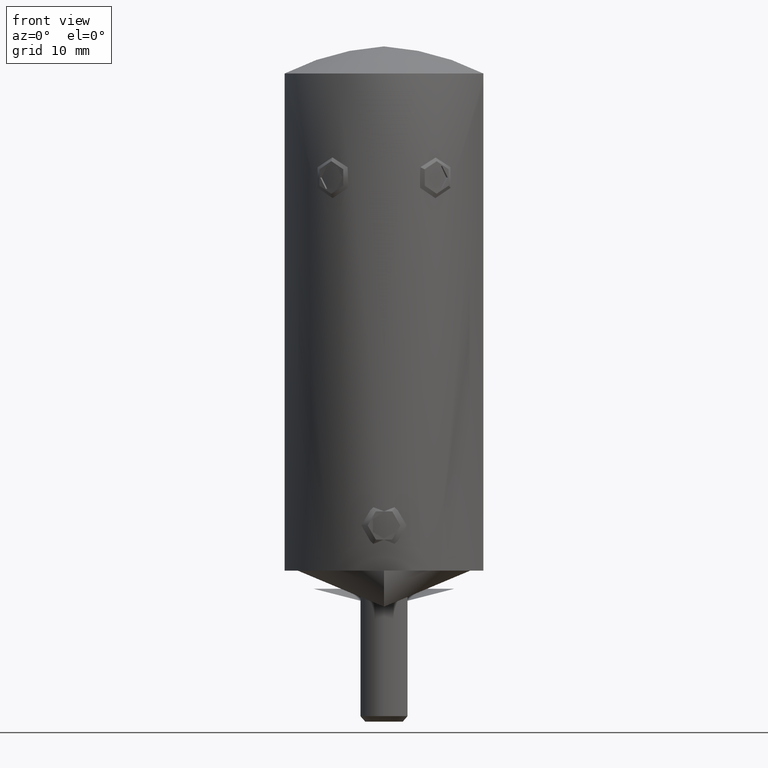
[diagram: clean part render]
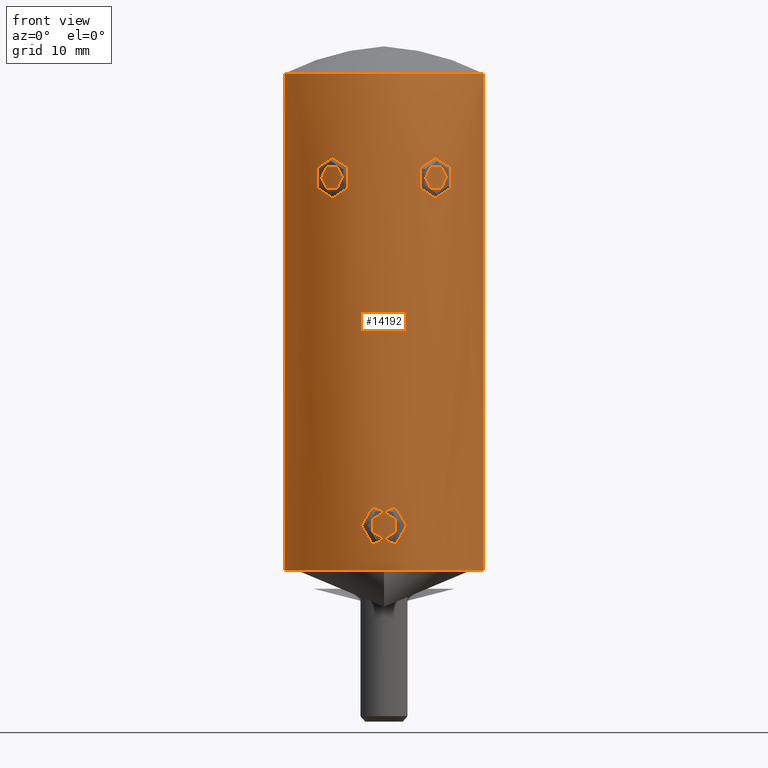
[diagram: same view with one face highlighted and labeled with its STEP entity id]
A machine part, front view. The second image highlights one B-rep face of the part: STEP entity #14192.
In plain terms, the highlighted cylindrical surface (partial cylindrical patch) has radius 11 mm, axis along (0, 0, 1).
Its self-contained STEP definition (entity closure, byte-faithful):
#43 = CARTESIAN_POINT ( 'NONE',  ( -10.99999999999999645, 3.179853121175712002E-15, 53.39940828047591737 ) ) ;
#69 = CIRCLE ( 'NONE', #14292, 10.99999999999999289 ) ;
#240 = CARTESIAN_POINT ( 'NONE',  ( 1.263044276301096058, -10.92810671216107643, 7.093506342109609619 ) ) ;
#248 = CARTESIAN_POINT ( 'NONE',  ( -1.533328306870322955, -10.89347143110831162, 3.080631270009503542 ) ) ;
#324 = VERTEX_POINT ( 'NONE', #18736 ) ;
#404 = EDGE_CURVE ( 'NONE', #7524, #13003, #69, .T. ) ;
#454 = CARTESIAN_POINT ( 'NONE',  ( -7.805173626811875209, -7.751081515202912442, 43.50247619131340571 ) ) ;
#503 = CARTESIAN_POINT ( 'NONE',  ( 7.346014400757161056, -8.188394633988851368, 41.90222231646865225 ) ) ;
#515 = CARTESIAN_POINT ( 'NONE',  ( 10.19334211656566147, -4.142174966946753578, 50.31575412906218503 ) ) ;
#579 = CARTESIAN_POINT ( 'NONE',  ( 10.29346247027996775, -3.890323998195838406, 50.72933105976477464 ) ) ;
#648 = CARTESIAN_POINT ( 'NONE',  ( 4.723918369379720872, -9.934956473713363323, 45.59595233822933835 ) ) ;
#718 = CARTESIAN_POINT ( 'NONE',  ( 4.475048106235433032, -10.04951289078336174, 45.42151148479056388 ) ) ;
#727 = CARTESIAN_POINT ( 'NONE',  ( 9.204154736256590752, -6.023743178888253169, 41.58995823227913746 ) ) ;
#797 = CARTESIAN_POINT ( 'NONE',  ( 10.44101067740119859, -3.465226348147305568, 51.31766995334638182 ) ) ;
#808 = CARTESIAN_POINT ( 'NONE',  ( -7.169343856100153012, -8.343527073195010857, 45.32063242537911663 ) ) ;
#813 = ORIENTED_EDGE ( 'NONE', *, *, #16245, .T. ) ;
#916 = CARTESIAN_POINT ( 'NONE',  ( -3.609331322568744227, -10.39179767781439701, 42.86600142999875374 ) ) ;
#936 = FACE_OUTER_BOUND ( 'NONE', #13303, .T. ) ;
#945 = CARTESIAN_POINT ( 'NONE',  ( 4.138493009041316562, -10.19248796723455541, 45.09683115607418102 ) ) ;
#966 = CARTESIAN_POINT ( 'NONE',  ( -5.123455516578107272, -9.735154540822911429, 45.79025270536583747 ) ) ;
#996 = CARTESIAN_POINT ( 'NONE',  ( -9.865857427622449549, -4.866926039614830835, 38.42771457943570113 ) ) ;
#1065 = CARTESIAN_POINT ( 'NONE',  ( -9.276586281824346969, -5.912086988701063639, 40.85549550818720377 ) ) ;
#1078 = CARTESIAN_POINT ( 'NONE',  ( -10.99999999999999645, 1.347111479062088010E-15, 57.99999999999999289 ) ) ;
#1518 = ORIENTED_EDGE ( 'NONE', *, *, #17278, .F. ) ;
#1526 = CARTESIAN_POINT ( 'NONE',  ( -7.572403671502472733, -7.979692977154612343, 42.28070653199636553 ) ) ;
#1602 = CARTESIAN_POINT ( 'NONE',  ( -4.722979850324800388, -9.935418067239124795, 41.40451927373677421 ) ) ;
#1674 = CARTESIAN_POINT ( 'NONE',  ( 2.256039582267046484, -10.76635616934929729, 3.926755654190314360 ) ) ;
#1687 = CARTESIAN_POINT ( 'NONE',  ( -1.543197030307326356, -10.89377639713939772, 6.931762059575682144 ) ) ;
#1764 = CARTESIAN_POINT ( 'NONE',  ( -2.382999229834681820, -10.73896813810978657, 4.220662270624457868 ) ) ;
#1825 = CARTESIAN_POINT ( 'NONE',  ( 0.002621827913309107781, -10.99999968754628021, 7.415153783528226406 ) ) ;
#1966 = CARTESIAN_POINT ( 'NONE',  ( 1.998357958352909636, -10.81735236367631892, 6.471525135745430646 ) ) ;
#1980 = CARTESIAN_POINT ( 'NONE',  ( -1.996072047007856565, -10.81778173646561036, 3.525478995045348451 ) ) ;
#2081 = DIRECTION ( 'NONE',  ( -0.000000000000000000, -0.000000000000000000, 1.000000000000000000 ) ) ;
#2226 = CARTESIAN_POINT ( 'NONE',  ( 6.859476513099561856, -8.600386782210662773, 41.40451927374201802 ) ) ;
#2240 = CARTESIAN_POINT ( 'NONE',  ( 9.151289692457538649, -6.103598936795919805, 43.32308385316923705 ) ) ;
#2289 = CARTESIAN_POINT ( 'NONE',  ( -10.93454373632697596, -1.219124606259238464, 53.16612827335458036 ) ) ;
#2308 = CARTESIAN_POINT ( 'NONE',  ( 3.623387571015019404, -10.38615267738855685, 42.87210132435333776 ) ) ;
#2345 = CARTESIAN_POINT ( 'NONE',  ( 1.995493121734534858, -10.81788920119726960, 3.524738894744719797 ) ) ;
#2361 = CARTESIAN_POINT ( 'NONE',  ( -10.99999999999999822, 1.347111479062088405E-15, 0.000000000000000000 ) ) ;
#2379 = CARTESIAN_POINT ( 'NONE',  ( 4.854168774372745965, -9.872201088604477093, 41.33002558955958250 ) ) ;
#2401 = ORIENTED_EDGE ( 'NONE', *, *, #6658, .T. ) ;
#2426 = CARTESIAN_POINT ( 'NONE',  ( -10.84083531602275663, -1.875746620144945975, 52.82786226949431097 ) ) ;
#2445 = CARTESIAN_POINT ( 'NONE',  ( 7.805174582279891027, -7.751080553066898027, 43.49999999999998579 ) ) ;
#2453 = CARTESIAN_POINT ( 'NONE',  ( 10.73887330626719283, -2.424918566267703302, 36.56511376614759712 ) ) ;
#2467 = CARTESIAN_POINT ( 'NONE',  ( -4.717684471826847137, -9.941608254227402242, 45.60877343995289124 ) ) ;
#2532 = CARTESIAN_POINT ( 'NONE',  ( 9.403972630176102854, -5.707726091161575255, 46.25228794264832999 ) ) ;
#2534 = ORIENTED_EDGE ( 'NONE', *, *, #11725, .T. ) ;
#2549 = CARTESIAN_POINT ( 'NONE',  ( -7.346751575683108548, -8.187745515911998950, 45.09683115594850022 ) ) ;
#2712 = CARTESIAN_POINT ( 'NONE',  ( -9.180302095915836347, -6.060518049954422892, 41.83116569363649262 ) ) ;
#2805 = DIRECTION ( 'NONE',  ( -0.000000000000000000, -0.000000000000000000, 1.000000000000000000 ) ) ;
#2822 = EDGE_LOOP ( 'NONE', ( #2401, #8426 ) ) ;
#3242 = EDGE_CURVE ( 'NONE', #11207, #13003, #3795, .T. ) ;
#3330 = CARTESIAN_POINT ( 'NONE',  ( -6.861096738142906659, -8.599075392163483045, 41.40577892343836197 ) ) ;
#3494 = CARTESIAN_POINT ( 'NONE',  ( -1.661524859630388873, -10.87442308525896451, 3.181962713572197732 ) ) ;
#3565 = CARTESIAN_POINT ( 'NONE',  ( -2.511729057886775696, -10.70939854239877853, 5.157936335757336010 ) ) ;
#3709 = CARTESIAN_POINT ( 'NONE',  ( 2.383584876163842292, -10.73884196754025488, 5.778017131772690718 ) ) ;
#3720 = CARTESIAN_POINT ( 'NONE',  ( -0.1616220108472307682, -11.00003883473657673, 7.415315291338782089 ) ) ;
#3795 = LINE ( 'NONE', #18200, #14477 ) ;
#3902 = VERTEX_POINT ( 'NONE', #9607 ) ;
#3936 = CARTESIAN_POINT ( 'NONE',  ( -10.99999999999999645, 1.353269175272069596E-15, 36.14600281952412786 ) ) ;
#3976 = CARTESIAN_POINT ( 'NONE',  ( 7.805122478971231459, -7.751133019999428164, 43.18034840470479452 ) ) ;
#3987 = CARTESIAN_POINT ( 'NONE',  ( 10.76329257720631816, -2.278833159707700506, 52.54377521516335037 ) ) ;
#4052 = CARTESIAN_POINT ( 'NONE',  ( 9.474578436458171993, -5.590818455961033884, 46.72472478465109447 ) ) ;
#4110 = CARTESIAN_POINT ( 'NONE',  ( 6.501307959275925974, -8.874460939697680573, 41.20867836921561889 ) ) ;
#4118 = CARTESIAN_POINT ( 'NONE',  ( 5.127724821338821570, -9.732930862167018304, 45.79194129289089688 ) ) ;
#4204 = CARTESIAN_POINT ( 'NONE',  ( 9.995745178423522503, -4.598577528994654884, 49.45529242598477992 ) ) ;
#4209 = VERTEX_POINT ( 'NONE', #20497 ) ;
#4246 = CARTESIAN_POINT ( 'NONE',  ( -10.49113112059435160, -3.320822038456118452, 51.51752061989330400 ) ) ;
#4335 = CARTESIAN_POINT ( 'NONE',  ( 10.99999999999999645, -2.446736237841549440E-16, 36.14600281952412786 ) ) ;
#4378 = B_SPLINE_CURVE_WITH_KNOTS ( 'NONE', 3,
 ( #454, #9077, #12800, #11223, #21390, #14714, #2549, #808, #14573, #4508, #19714, #9436, #17960, #11157, #12931, #14442, #9363, #19633, #966, #2467, #6083, #14500, #18115, #7853, #4434, #16428, #7929, #21461 ),
 .UNSPECIFIED., .F., .F.,
 ( 4, 2, 2, 2, 2, 2, 2, 2, 2, 2, 2, 2, 2, 4 ),
 ( 0.5000000000000000000, 0.5624999999999992228, 0.5937499999999994449, 0.6249999999999996669, 0.6562499999999998890, 0.6875000000000001110, 0.7187500000000003331, 0.7500000000000005551, 0.7812500000000007772, 0.8125000000000009992, 0.8750000000000008882, 0.9062500000000004441, 0.9375000000000000000, 1.000000000000000000 ),
 .UNSPECIFIED. ) ;
#4385 = CARTESIAN_POINT ( 'NONE',  ( -9.663109020658438908, -5.264292116124043019, 39.02877772619952879 ) ) ;
#4407 = ORIENTED_EDGE ( 'NONE', *, *, #15557, .T. ) ;
#4434 = CARTESIAN_POINT ( 'NONE',  ( -3.791161425048452216, -10.32624101775442149, 44.57151056501534470 ) ) ;
#4446 = LINE ( 'NONE', #1078, #22174 ) ;
#4470 = CARTESIAN_POINT ( 'NONE',  ( -10.50514627013607516, -3.293040702412894927, 36.98298912679695150 ) ) ;
#4508 = CARTESIAN_POINT ( 'NONE',  ( -6.858650215820417451, -8.601027968341584895, 45.59595233828814997 ) ) ;
#4731 = B_SPLINE_CURVE_WITH_KNOTS ( 'NONE', 3,
 ( #5959, #16378, #916, #17924, #21941, #19661, #6110, #18065, #18674, #1602, #18509, #22180, #8422, #11858, #10137, #15343, #15130, #13575, #9982, #8265, #3330, #20282, #20588, #8505, #1526, #8342, #11711, #20509, #22018, #4919 ),
 .UNSPECIFIED., .F., .F.,
 ( 4, 2, 2, 2, 2, 2, 2, 2, 2, 2, 2, 2, 2, 2, 4 ),
 ( 0.000000000000000000, 0.06250000000000113798, 0.09375000000000109635, 0.1250000000000010547, 0.1562500000000009992, 0.1875000000000009714, 0.2187500000000009159, 0.2500000000000008882, 0.2812500000000008327, 0.3125000000000007772, 0.3437500000000007772, 0.3750000000000007216, 0.4374999999999996669, 0.4687499999999998890, 0.5000000000000000000 ),
 .UNSPECIFIED. ) ;
#4785 = AXIS2_PLACEMENT_3D ( 'NONE', #10193, #17074, #6762 ) ;
#4919 = CARTESIAN_POINT ( 'NONE',  ( -7.805173626811875209, -7.751081515202912442, 43.50247619131340571 ) ) ;
#4953 = EDGE_CURVE ( 'NONE', #11202, #10979, #5534, .T. ) ;
#5161 = CARTESIAN_POINT ( 'NONE',  ( -1.892943344138689588, -10.83654561251814030, 6.595331397874517165 ) ) ;
#5220 = CARTESIAN_POINT ( 'NONE',  ( 1.116343252719524504, -10.94426300031696009, 7.169244775428256666 ) ) ;
#5233 = CARTESIAN_POINT ( 'NONE',  ( -2.256864148904698109, -10.76618397735614430, 6.071739856479837272 ) ) ;
#5385 = CARTESIAN_POINT ( 'NONE',  ( -0.3276201267070146250, -10.99632626431258409, 7.399832416807036850 ) ) ;
#5440 = CARTESIAN_POINT ( 'NONE',  ( 2.495297978064225930, -10.71329013739204861, 4.682043413946999522 ) ) ;
#5451 = CARTESIAN_POINT ( 'NONE',  ( -0.3315329495192520515, -10.99999999999999822, 2.584844930053900480 ) ) ;
#5534 = B_SPLINE_CURVE_WITH_KNOTS ( 'NONE', 3,
 ( #12685, #16247, #11028, #12543, #2289, #14241, #2426, #19663, #15962, #5752, #4246, #7456, #5960, #21194, #16097, #12965, #11398, #21553, #11315, #16465, #7885, #6239, #2712, #1065, #18143, #14741, #4385, #996, #19884, #14674, #7812, #7959, #4470, #18213, #19963, #16312, #11183, #6111, #19819, #21487 ),
 .UNSPECIFIED., .F., .F.,
 ( 4, 2, 2, 2, 2, 2, 2, 2, 2, 2, 2, 2, 2, 2, 2, 2, 2, 2, 2, 4 ),
 ( 5.732706551633638924E-18, 0.0007447471617333642534, 0.001489494323466722218, 0.002234241485200080292, 0.002978988646933438799, 0.004468482970400154512, 0.005957977293866868924, 0.007447471617333584204, 0.008936965940800298616, 0.01191595458773374826, 0.01340544891120047308, 0.01489494323466719790, 0.01638443755813392619, 0.01787393188160064927, 0.01861867904333400908, 0.01936342620506737236, 0.02085292052853408504, 0.02159766769026744138, 0.02234241485200080118, 0.02383190917546752080 ),
 .UNSPECIFIED. ) ;
#5597 = CARTESIAN_POINT ( 'NONE',  ( -1.813320843293642483E-15, -10.99999999999999645, 2.584844900694855063 ) ) ;
#5695 = CARTESIAN_POINT ( 'NONE',  ( 5.689463253177241775, -9.415786239710421057, 41.08485959924114894 ) ) ;
#5707 = CARTESIAN_POINT ( 'NONE',  ( 9.276186270179691107, -5.912711176572025273, 40.85856367220498697 ) ) ;
#5752 = CARTESIAN_POINT ( 'NONE',  ( -10.58764482631107562, -3.006227149099431895, 51.88764023705202533 ) ) ;
#5758 = EDGE_LOOP ( 'NONE', ( #14025, #4407 ) ) ;
#5768 = CARTESIAN_POINT ( 'NONE',  ( 7.169889557034017535, -8.343046086292673635, 41.68007258356631439 ) ) ;
#5818 = VERTEX_POINT ( 'NONE', #11908 ) ;
#5845 = CARTESIAN_POINT ( 'NONE',  ( 6.743819097475735269, -8.691603196884100768, 41.32930433182398389 ) ) ;
#5920 = CARTESIAN_POINT ( 'NONE',  ( 4.356278970466076927, -10.10132510513249393, 45.32063242525347135 ) ) ;
#5924 = CARTESIAN_POINT ( 'NONE',  ( 10.99144955070029539, -0.4993093784154237769, 36.15920211634576731 ) ) ;
#5959 = CARTESIAN_POINT ( 'NONE',  ( -3.545061720958730955, -10.41309451578122669, 43.49999999999998579 ) ) ;
#5960 = CARTESIAN_POINT ( 'NONE',  ( -10.19190643202290580, -4.145583814347573615, 50.30960074465254905 ) ) ;
#5979 = CARTESIAN_POINT ( 'NONE',  ( 7.618695975550133781, -7.934712000149041877, 42.42702881918063440 ) ) ;
#5985 = CARTESIAN_POINT ( 'NONE',  ( 5.970656882540883004, -9.240046677388185969, 45.91502748698400893 ) ) ;
#5992 = CARTESIAN_POINT ( 'NONE',  ( 10.36446980822711517, -3.690835795071915282, 37.26007699895404102 ) ) ;
#6062 = CARTESIAN_POINT ( 'NONE',  ( 3.792050123238138060, -10.32591424576499151, 44.57324526192557101 ) ) ;
#6083 = CARTESIAN_POINT ( 'NONE',  ( -4.461155432050977865, -10.05747660313178216, 45.42891471473495812 ) ) ;
#6110 = CARTESIAN_POINT ( 'NONE',  ( -4.139399588588111634, -10.19210995349174631, 41.90222231646870199 ) ) ;
#6111 = CARTESIAN_POINT ( 'NONE',  ( -10.96611358357113097, -0.9909392377880378300, 36.19764238659529099 ) ) ;
#6222 = EDGE_CURVE ( 'NONE', #16220, #6376, #15059, .T. ) ;
#6239 = CARTESIAN_POINT ( 'NONE',  ( -9.156828884951634606, -6.095285974169081022, 42.32467338520976341 ) ) ;
#6264 = CARTESIAN_POINT ( 'NONE',  ( 6.867361557435126329, -8.598340926928942807, 45.60877343997567834 ) ) ;
#6376 = VERTEX_POINT ( 'NONE', #4335 ) ;
#6658 = EDGE_CURVE ( 'NONE', #22033, #324, #19297, .T. ) ;
#6762 = DIRECTION ( 'NONE',  ( 1.000000000000000000, 0.000000000000000000, 0.000000000000000000 ) ) ;
#6787 = CARTESIAN_POINT ( 'NONE',  ( -1.261211241403978667, -10.92831925419362626, 2.905472548706903524 ) ) ;
#6890 = ORIENTED_EDGE ( 'NONE', *, *, #6222, .T. ) ;
#7004 = CARTESIAN_POINT ( 'NONE',  ( -2.177980241880006496, -10.78262365602483186, 6.213167996627049661 ) ) ;
#7113 = CARTESIAN_POINT ( 'NONE',  ( 10.93489635769101120, -1.216236221673742568, 53.16739528019291328 ) ) ;
#7149 = ORIENTED_EDGE ( 'NONE', *, *, #404, .F. ) ;
#7287 = CARTESIAN_POINT ( 'NONE',  ( 1.543890676010165386, -10.89363039259129273, 3.069276441871676475 ) ) ;
#7403 = CARTESIAN_POINT ( 'NONE',  ( 5.126284629172894292, -9.733679403218731707, 41.20864326721933679 ) ) ;
#7456 = CARTESIAN_POINT ( 'NONE',  ( -10.29255199365515239, -3.892950636535786213, 50.72570193885133705 ) ) ;
#7524 = VERTEX_POINT ( 'NONE', #19038 ) ;
#7540 = CARTESIAN_POINT ( 'NONE',  ( 4.721090920897334620, -9.936299440280057738, 41.40577892337500998 ) ) ;
#7548 = CARTESIAN_POINT ( 'NONE',  ( 10.72128936084499706, -2.467408373022287105, 52.38849049659415869 ) ) ;
#7632 = CARTESIAN_POINT ( 'NONE',  ( 9.631011627530940089, -5.316813198380814676, 47.65461018336073806 ) ) ;
#7701 = CARTESIAN_POINT ( 'NONE',  ( 6.374115018154714818, -8.966432038738386012, 45.83722599151861488 ) ) ;
#7708 = CARTESIAN_POINT ( 'NONE',  ( 9.731269890558168711, -5.130702321242053721, 38.82671386850730499 ) ) ;
#7812 = CARTESIAN_POINT ( 'NONE',  ( -10.15198952329512316, -4.239602061929548249, 37.71287690491390521 ) ) ;
#7853 = CARTESIAN_POINT ( 'NONE',  ( -3.865003218479962754, -10.29904843934486713, 44.71000965139072747 ) ) ;
#7885 = CARTESIAN_POINT ( 'NONE',  ( -9.151137685892106077, -6.103827110021398106, 43.32066602409263112 ) ) ;
#7929 = CARTESIAN_POINT ( 'NONE',  ( -3.544992605608411118, -10.41311804559576260, 43.81562291544153709 ) ) ;
#7959 = CARTESIAN_POINT ( 'NONE',  ( -10.36534291987990741, -3.702449709549165746, 37.24861618029456878 ) ) ;
#7982 = CARTESIAN_POINT ( 'NONE',  ( 7.426268274342175069, -8.115367407106795383, 44.97289511913714222 ) ) ;
#8201 = CARTESIAN_POINT ( 'NONE',  ( 0.000000000000000000, 0.000000000000000000, 54.99999999999999289 ) ) ;
#8265 = CARTESIAN_POINT ( 'NONE',  ( -6.745148029850556171, -8.690586106776336806, 41.33002558949048932 ) ) ;
#8342 = CARTESIAN_POINT ( 'NONE',  ( -7.711835532714734320, -7.844220296486905220, 42.72097590634438546 ) ) ;
#8422 = CARTESIAN_POINT ( 'NONE',  ( -5.264602615324019297, -9.659732878582310889, 41.16277964135915823 ) ) ;
#8426 = ORIENTED_EDGE ( 'NONE', *, *, #13095, .T. ) ;
#8463 = CARTESIAN_POINT ( 'NONE',  ( 10.99999999999999645, -1.832167948787974703E-20, 53.39940828047591737 ) ) ;
#8505 = CARTESIAN_POINT ( 'NONE',  ( -7.436173316924136856, -8.109199354610238331, 42.01615640583560207 ) ) ;
#8511 = CARTESIAN_POINT ( 'NONE',  ( 1.893470199354566619, -10.83645095076631648, 6.594738271637381466 ) ) ;
#8646 = CARTESIAN_POINT ( 'NONE',  ( 1.535022905125253079, -10.89323192799169604, 6.918116975734392327 ) ) ;
#8656 = CARTESIAN_POINT ( 'NONE',  ( -2.382856163159502216, -10.73900133748870367, 5.779816620065270527 ) ) ;
#8789 = CARTESIAN_POINT ( 'NONE',  ( 0.3311095054343895505, -10.99992139316568540, 7.414830767907104381 ) ) ;
#8857 = CARTESIAN_POINT ( 'NONE',  ( 0.6509923734589307953, -10.98190638562794597, 2.662025886931070673 ) ) ;
#9064 = CARTESIAN_POINT ( 'NONE',  ( 10.49836223799335322, -3.290728428738954658, 36.99911946639046789 ) ) ;
#9077 = CARTESIAN_POINT ( 'NONE',  ( -7.804981806833529490, -7.751274673826408446, 43.81765462899171126 ) ) ;
#9125 = CARTESIAN_POINT ( 'NONE',  ( 4.028696275618916189, -10.23842732507811704, 42.01615640570476984 ) ) ;
#9188 = CARTESIAN_POINT ( 'NONE',  ( 5.546824059628596260, -9.500468616226713792, 41.10060669162184155 ) ) ;
#9203 = CARTESIAN_POINT ( 'NONE',  ( 10.95786264964113954, -0.9932367454756358960, 36.21171868174419473 ) ) ;
#9279 = CARTESIAN_POINT ( 'NONE',  ( 10.84032913580386293, -1.878513215223658772, 52.82601412267307239 ) ) ;
#9346 = CARTESIAN_POINT ( 'NONE',  ( 5.690929114861999594, -9.414910090859141434, 45.91528120711719652 ) ) ;
#9352 = CARTESIAN_POINT ( 'NONE',  ( 9.667618367043559147, -5.248993232710269297, 39.03413880142024794 ) ) ;
#9363 = CARTESIAN_POINT ( 'NONE',  ( -5.546932442110414030, -9.500409793932190539, 45.89942136837099440 ) ) ;
#9436 = CARTESIAN_POINT ( 'NONE',  ( -6.500053701618307755, -8.875404604138994458, 45.79194129288713100 ) ) ;
#9607 = CARTESIAN_POINT ( 'NONE',  ( 3.545063004570461196, -10.41309407878493154, 43.50247619131341281 ) ) ;
#9982 = CARTESIAN_POINT ( 'NONE',  ( -6.501357824665757512, -8.874438306706970536, 41.20864326728845128 ) ) ;
#10127 = EDGE_CURVE ( 'NONE', #20902, #16220, #12111, .T. ) ;
#10137 = CARTESIAN_POINT ( 'NONE',  ( -5.689946788311073256, -9.415494047968378410, 41.08483023268967571 ) ) ;
#10193 = CARTESIAN_POINT ( 'NONE',  ( 0.000000000000000000, 0.000000000000000000, 0.000000000000000000 ) ) ;
#10204 = CARTESIAN_POINT ( 'NONE',  ( 2.430721202019303195, -10.72812621128811195, 4.371317447606202222 ) ) ;
#10509 = CARTESIAN_POINT ( 'NONE',  ( -1.268443744210189239, -10.93091935414429905, 7.108644643610197988 ) ) ;
#10529 = VECTOR ( 'NONE', #13675, 1000.000000000000000 ) ;
#10757 = CARTESIAN_POINT ( 'NONE',  ( 7.425485977187489262, -8.116079469776769528, 42.02587819805970071 ) ) ;
#10834 = CARTESIAN_POINT ( 'NONE',  ( 3.669692314003289546, -10.37003170988428913, 42.72097590637630304 ) ) ;
#10871 = CARTESIAN_POINT ( 'NONE',  ( -1.813320843293642483E-15, -10.99999999999999645, 2.584844900694855063 ) ) ;
#10915 = CARTESIAN_POINT ( 'NONE',  ( 4.355521960543883075, -10.10165211211725023, 41.68006691385870965 ) ) ;
#10920 = CARTESIAN_POINT ( 'NONE',  ( 4.040842682857204160, -10.23133385095082204, 44.97580249699208821 ) ) ;
#10926 = CARTESIAN_POINT ( 'NONE',  ( 9.155280128689614827, -6.097610312192391468, 42.58146745158161650 ) ) ;
#10979 = VERTEX_POINT ( 'NONE', #3936 ) ;
#10990 = CARTESIAN_POINT ( 'NONE',  ( 10.99999999999999645, -2.446736237841549440E-16, 36.14600281952412786 ) ) ;
#11028 = CARTESIAN_POINT ( 'NONE',  ( -10.99135156056391516, -0.4987275175918612358, 53.36875522293461671 ) ) ;
#11157 = CARTESIAN_POINT ( 'NONE',  ( -6.105894110329288083, -9.151179188631038741, 45.89959423356301471 ) ) ;
#11183 = CARTESIAN_POINT ( 'NONE',  ( -10.86813653608445840, -1.715520375343544401, 36.35483671402329264 ) ) ;
#11202 = VERTEX_POINT ( 'NONE', #43 ) ;
#11207 = VERTEX_POINT ( 'NONE', #8463 ) ;
#11223 = CARTESIAN_POINT ( 'NONE',  ( -7.618544885504150876, -7.934854943576327813, 44.57324526186122426 ) ) ;
#11315 = CARTESIAN_POINT ( 'NONE',  ( -9.268073524593374302, -5.925988443663896099, 45.28526015571399199 ) ) ;
#11358 = CARTESIAN_POINT ( 'NONE',  ( 10.99999999999999289, 0.000000000000000000, 54.99999999999999289 ) ) ;
#11375 = CYLINDRICAL_SURFACE ( 'NONE', #17821, 10.99999999999999645 ) ;
#11386 = B_SPLINE_CURVE_WITH_KNOTS ( 'NONE', 3,
 ( #2445, #3976, #21060, #5979, #19322, #10757, #503, #5768, #12490, #2226, #5845, #4110, #14191, #15904, #12560, #5695, #9188, #17645, #7403, #2379, #7540, #17713, #10915, #9125, #21138, #10834, #2308, #19473, #12627, #17791 ),
 .UNSPECIFIED., .F., .F.,
 ( 4, 2, 2, 2, 2, 2, 2, 2, 2, 2, 2, 2, 2, 2, 4 ),
 ( 0.000000000000000000, 0.06249999999999994449, 0.09374999999999988898, 0.1249999999999998335, 0.1562499999999997780, 0.1874999999999997224, 0.2187499999999996669, 0.2499999999999996114, 0.2812499999999996114, 0.3124999999999995559, 0.3437499999999995559, 0.3749999999999995004, 0.4375000000000003331, 0.4687500000000001110, 0.5000000000000000000 ),
 .UNSPECIFIED. ) ;
#11398 = CARTESIAN_POINT ( 'NONE',  ( -9.630588175924499339, -5.317624988652979390, 47.65264039846347544 ) ) ;
#11491 = CARTESIAN_POINT ( 'NONE',  ( 7.083958268796566315, -8.418567494383854211, 45.42891471491061850 ) ) ;
#11711 = CARTESIAN_POINT ( 'NONE',  ( -7.746623625623738185, -7.809668836176080653, 42.87210132440314680 ) ) ;
#11725 = EDGE_CURVE ( 'NONE', #4209, #5818, #4378, .T. ) ;
#11854 = EDGE_CURVE ( 'NONE', #20902, #10979, #12869, .T. ) ;
#11858 = CARTESIAN_POINT ( 'NONE',  ( -5.548035723529287644, -9.499777870733796092, 41.10036188874187246 ) ) ;
#11908 = CARTESIAN_POINT ( 'NONE',  ( -3.545061720958730955, -10.41309451578122669, 43.49999999999998579 ) ) ;
#12031 = CARTESIAN_POINT ( 'NONE',  ( -1.892899697451093211, -10.83654340792175397, 3.404725381007181362 ) ) ;
#12111 = CIRCLE ( 'NONE', #4785, 11.00000000000000000 ) ;
#12234 = CARTESIAN_POINT ( 'NONE',  ( 1.660782927813421628, -10.87454360747573823, 6.818738680830397136 ) ) ;
#12243 = CARTESIAN_POINT ( 'NONE',  ( -2.511703974928243266, -10.70940442520010549, 4.842739291575837157 ) ) ;
#12273 = CARTESIAN_POINT ( 'NONE',  ( 10.87563798187002284, -1.664838547025352167, 52.95395550353872238 ) ) ;
#12400 = EDGE_CURVE ( 'NONE', #19181, #3902, #11386, .T. ) ;
#12467 = FACE_BOUND ( 'NONE', #2822, .T. ) ;
#12490 = CARTESIAN_POINT ( 'NONE',  ( 7.073224096385060555, -8.425471602213496780, 41.58076750943425282 ) ) ;
#12501 = CARTESIAN_POINT ( 'NONE',  ( 9.186107045077068989, -6.051109553789101980, 41.83785624538883496 ) ) ;
#12527 = CARTESIAN_POINT ( 'NONE',  ( 0.8106894968023395931, -10.97114265804650657, 2.708653337319307131 ) ) ;
#12543 = CARTESIAN_POINT ( 'NONE',  ( -10.95879317033269729, -0.9815245868461872636, 53.25273729518056598 ) ) ;
#12560 = CARTESIAN_POINT ( 'NONE',  ( 5.968281494608199900, -9.241571220430625289, 41.08483023268966150 ) ) ;
#12627 = CARTESIAN_POINT ( 'NONE',  ( 3.544934155488834726, -10.41313794452828922, 43.34488697248128375 ) ) ;
#12685 = CARTESIAN_POINT ( 'NONE',  ( -10.99999999999999645, 3.179853121175712002E-15, 53.39940828047591737 ) ) ;
#12711 = CARTESIAN_POINT ( 'NONE',  ( 3.610266569493127520, -10.39146630121909176, 44.13663394487269898 ) ) ;
#12718 = CARTESIAN_POINT ( 'NONE',  ( 10.08132311885423782, -4.417631596342752154, 37.86656821793639693 ) ) ;
#12789 = CARTESIAN_POINT ( 'NONE',  ( 9.494267281368070854, -5.555888141879219866, 39.69273062005098751 ) ) ;
#12800 = CARTESIAN_POINT ( 'NONE',  ( -7.757151347530283125, -7.800205097538528420, 44.13663394500139958 ) ) ;
#12869 = LINE ( 'NONE', #20162, #13407 ) ;
#12931 = CARTESIAN_POINT ( 'NONE',  ( -5.967326013728599499, -9.242198139794622236, 45.91528120711717520 ) ) ;
#12965 = CARTESIAN_POINT ( 'NONE',  ( -9.717539187263652067, -5.158495255006234181, 48.11555026792652257 ) ) ;
#13003 = VERTEX_POINT ( 'NONE', #11358 ) ;
#13095 = EDGE_CURVE ( 'NONE', #324, #22033, #14806, .T. ) ;
#13155 = B_SPLINE_CURVE_WITH_KNOTS ( 'NONE', 3,
 ( #14421, #16122, #12711, #6062, #21217, #10920, #945, #5920, #718, #648, #14349, #4118, #17875, #19612, #9346, #5985, #17943, #7701, #19691, #6264, #11491, #18164, #7982, #20070, #21717, #13205, #19993, #14697 ),
 .UNSPECIFIED., .F., .F.,
 ( 4, 2, 2, 2, 2, 2, 2, 2, 2, 2, 2, 2, 2, 4 ),
 ( 0.5000000000000000000, 0.5624999999999985567, 0.5937499999999984457, 0.6249999999999983347, 0.6562499999999982236, 0.6874999999999981126, 0.7187499999999980016, 0.7499999999999980016, 0.7812499999999978906, 0.8124999999999977796, 0.8749999999999980016, 0.9062499999999982236, 0.9374999999999983347, 1.000000000000000000 ),
 .UNSPECIFIED. ) ;
#13205 = CARTESIAN_POINT ( 'NONE',  ( 7.757978377606356446, -7.799384945154953286, 44.13318355612461374 ) ) ;
#13303 = EDGE_LOOP ( 'NONE', ( #21850, #14620, #6890, #1518, #20651, #7149, #15091, #17073 ) ) ;
#13407 = VECTOR ( 'NONE', #16580, 1000.000000000000000 ) ;
#13575 = CARTESIAN_POINT ( 'NONE',  ( -6.373786854822533599, -8.966660593871329965, 41.16269285544046141 ) ) ;
#13664 = CARTESIAN_POINT ( 'NONE',  ( -0.8104466578491293927, -10.97117418873382455, 7.291497780559773823 ) ) ;
#13675 = DIRECTION ( 'NONE',  ( -0.000000000000000000, -0.000000000000000000, 1.000000000000000000 ) ) ;
#13805 = CARTESIAN_POINT ( 'NONE',  ( -2.430803093630610423, -10.72810763095448294, 5.628396886907461649 ) ) ;
#13827 = DIRECTION ( 'NONE',  ( 1.000000000000000000, 0.000000000000000000, 0.000000000000000000 ) ) ;
#13875 = CARTESIAN_POINT ( 'NONE',  ( -0.6586619931418169482, -10.98452728325521477, 2.647857589405048451 ) ) ;
#13929 = CARTESIAN_POINT ( 'NONE',  ( 2.179889364274961050, -10.78223673683558559, 6.210013498346564020 ) ) ;
#13940 = CARTESIAN_POINT ( 'NONE',  ( -2.179285043678784284, -10.78236625296382556, 3.788823219971166889 ) ) ;
#14025 = ORIENTED_EDGE ( 'NONE', *, *, #12400, .T. ) ;
#14054 = CARTESIAN_POINT ( 'NONE',  ( 10.95866947143712089, -0.9833694920435148701, 53.25229652795615465 ) ) ;
#14191 = CARTESIAN_POINT ( 'NONE',  ( 6.374260514313759174, -8.966341666394917809, 41.16277964137908185 ) ) ;
#14192 = ADVANCED_FACE ( 'NONE', ( #936, #12467, #19727, #19956 ), #11375, .T. ) ;
#14203 = CARTESIAN_POINT ( 'NONE',  ( 9.161691856020862446, -6.088012139515936560, 42.33388664005981639 ) ) ;
#14241 = CARTESIAN_POINT ( 'NONE',  ( -10.87562171476231576, -1.664741374695976051, 52.95389381010414809 ) ) ;
#14292 = AXIS2_PLACEMENT_3D ( 'NONE', #8201, #18446, #20212 ) ;
#14302 = CARTESIAN_POINT ( 'NONE',  ( 0.1643935056627707780, -10.99999999999999822, 2.584844886136909992 ) ) ;
#14349 = CARTESIAN_POINT ( 'NONE',  ( 4.854478603077036603, -9.872058676049523029, 45.67017007466087364 ) ) ;
#14421 = CARTESIAN_POINT ( 'NONE',  ( 3.545063004570461196, -10.41309407878493154, 43.50247619131341281 ) ) ;
#14442 = CARTESIAN_POINT ( 'NONE',  ( -5.687535236479409839, -9.416960716874122284, 45.91502748698402314 ) ) ;
#14461 = CARTESIAN_POINT ( 'NONE',  ( 11.00000000000000000, 0.000000000000000000, 0.000000000000000000 ) ) ;
#14477 = VECTOR ( 'NONE', #21680, 1000.000000000000000 ) ;
#14484 = EDGE_CURVE ( 'NONE', #11202, #7524, #4446, .T. ) ;
#14486 = CARTESIAN_POINT ( 'NONE',  ( 9.549267367794353589, -5.461343020376402180, 39.46635467751320192 ) ) ;
#14500 = CARTESIAN_POINT ( 'NONE',  ( -4.137386364204854061, -10.19292499364911997, 45.09543569683550146 ) ) ;
#14573 = CARTESIAN_POINT ( 'NONE',  ( -7.070710384247548497, -8.427563085332639758, 45.42151148473174516 ) ) ;
#14620 = ORIENTED_EDGE ( 'NONE', *, *, #10127, .T. ) ;
#14674 = CARTESIAN_POINT ( 'NONE',  ( -10.07994095445506844, -4.407312253728409956, 37.87915800364847740 ) ) ;
#14697 = CARTESIAN_POINT ( 'NONE',  ( 7.805174582279891027, -7.751080553066898027, 43.49999999999998579 ) ) ;
#14714 = CARTESIAN_POINT ( 'NONE',  ( -7.424473110114695018, -8.117006898751633059, 44.97580249688935083 ) ) ;
#14741 = CARTESIAN_POINT ( 'NONE',  ( -9.544125100363123337, -5.472224506626516494, 39.45850021085121995 ) ) ;
#14806 = B_SPLINE_CURVE_WITH_KNOTS ( 'NONE', 3,
 ( #1825, #8789, #20808, #5220, #240, #8646, #12234, #8511, #1966, #13929, #20663, #3709, #17384, #15642, #18829, #18756, #5440, #10204, #22264, #1674, #15349, #2345, #17533, #7287, #15794, #12527, #8857, #20883, #14302, #5597 ),
 .UNSPECIFIED., .F., .F.,
 ( 4, 2, 2, 2, 2, 2, 2, 2, 2, 2, 2, 2, 2, 2, 4 ),
 ( 0.5000000000000000000, 0.5624999999999997780, 0.5937499999999997780, 0.6249999999999996669, 0.6562499999999996669, 0.6874999999999995559, 0.7187499999999995559, 0.7499999999999994449, 0.7812499999999993339, 0.8124999999999993339, 0.8437499999999994449, 0.8749999999999995559, 0.9374999999999997780, 0.9687500000000000000, 1.000000000000000000 ),
 .UNSPECIFIED. ) ;
#15059 = LINE ( 'NONE', #20547, #10529 ) ;
#15091 = ORIENTED_EDGE ( 'NONE', *, *, #14484, .F. ) ;
#15130 = CARTESIAN_POINT ( 'NONE',  ( -6.107397005234321163, -9.150183763009810178, 41.10060669161273239 ) ) ;
#15343 = CARTESIAN_POINT ( 'NONE',  ( -5.968756082477893798, -9.241264710472398392, 41.08485959924113473 ) ) ;
#15349 = CARTESIAN_POINT ( 'NONE',  ( 2.178857699642325674, -10.78245327803369946, 3.788117446808503264 ) ) ;
#15362 = CARTESIAN_POINT ( 'NONE',  ( -2.257482614959108513, -10.76605286276670803, 3.929546619571035126 ) ) ;
#15557 = EDGE_CURVE ( 'NONE', #3902, #19181, #13155, .T. ) ;
#15610 = CARTESIAN_POINT ( 'NONE',  ( 10.99147959650919049, -0.4968182983868812963, 53.36921144471412504 ) ) ;
#15642 = CARTESIAN_POINT ( 'NONE',  ( 2.495530447803788743, -10.71323517469553188, 5.316057407631489262 ) ) ;
#15656 = CARTESIAN_POINT ( 'NONE',  ( 0.002621827913309107781, -10.99999968754628021, 7.415153783528226406 ) ) ;
#15794 = CARTESIAN_POINT ( 'NONE',  ( 1.265772666320305051, -10.93117442413804596, 2.890181047733272557 ) ) ;
#15904 = CARTESIAN_POINT ( 'NONE',  ( 6.106245008757659853, -9.150969996447985366, 41.10036188872192753 ) ) ;
#15906 = B_SPLINE_CURVE_WITH_KNOTS ( 'NONE', 3,
 ( #20478, #19028, #15610, #14054, #7113, #12273, #9279, #3987, #7548, #16058, #19554, #17806, #797, #579, #515, #4204, #19484, #21223, #7632, #4052, #2532, #21149, #16130, #17722, #2240, #10926, #14203, #12501, #727, #5707, #15918, #12789, #14486, #9352, #7708, #15990, #12718, #21374, #5992, #9064, #17881, #2453, #17659, #21293, #9203, #5924, #19402, #10990 ),
 .UNSPECIFIED., .F., .F.,
 ( 4, 2, 2, 2, 2, 2, 2, 2, 2, 2, 2, 2, 2, 2, 2, 2, 2, 2, 2, 2, 2, 2, 2, 4 ),
 ( 0.02373305353298708550, 0.02447535600702939462, 0.02521765848107170374, 0.02595996095511400939, 0.02670226342915631851, 0.02744456590319862763, 0.02818686837724093674, 0.02967147332532553763, 0.03115607827341013852, 0.03264068322149473594, 0.03412528816957934030, 0.03560989311766393772, 0.03709449806574853514, 0.03783680053979082691, 0.03857910301383311868, 0.04006370796191771610, 0.04080601043596000788, 0.04154831291000229965, 0.04303291785808689707, 0.04377522033212919578, 0.04451752280617150836, 0.04600212775425611966, 0.04674443022829842531, 0.04748673270234073096 ),
 .UNSPECIFIED. ) ;
#15918 = CARTESIAN_POINT ( 'NONE',  ( 9.348376104478699489, -5.800334579119827971, 40.38316064725977128 ) ) ;
#15962 = CARTESIAN_POINT ( 'NONE',  ( -10.72066440796315767, -2.470073037757277046, 52.38616429040234834 ) ) ;
#15990 = CARTESIAN_POINT ( 'NONE',  ( 9.932215519004353510, -4.736873953609041621, 38.23098244837987636 ) ) ;
#16058 = CARTESIAN_POINT ( 'NONE',  ( 10.63235953451128601, -2.826142311900726067, 52.05523553867127617 ) ) ;
#16097 = CARTESIAN_POINT ( 'NONE',  ( -9.900029114979910005, -4.798964958663129998, 49.01627922780249946 ) ) ;
#16122 = CARTESIAN_POINT ( 'NONE',  ( 3.545320702733715468, -10.41300634729821084, 43.81765462897765673 ) ) ;
#16130 = CARTESIAN_POINT ( 'NONE',  ( 9.235293332214254747, -5.976038060906662785, 44.79945591862026788 ) ) ;
#16220 = VERTEX_POINT ( 'NONE', #14461 ) ;
#16245 = EDGE_CURVE ( 'NONE', #5818, #4209, #4731, .T. ) ;
#16247 = CARTESIAN_POINT ( 'NONE',  ( -10.99999999999999112, -0.2522254579425808330, 53.39940828047591026 ) ) ;
#16312 = CARTESIAN_POINT ( 'NONE',  ( -10.82738350603336386, -1.955346398353034365, 36.42110247560446368 ) ) ;
#16378 = CARTESIAN_POINT ( 'NONE',  ( -3.545131718512483765, -10.41307068562699456, 43.18034840469319846 ) ) ;
#16428 = CARTESIAN_POINT ( 'NONE',  ( -3.609166875344445025, -10.39185009976731600, 44.13318355612474164 ) ) ;
#16465 = CARTESIAN_POINT ( 'NONE',  ( -9.169022805507459850, -6.077224059141696166, 43.81796395058148619 ) ) ;
#16580 = DIRECTION ( 'NONE',  ( -0.000000000000000000, -0.000000000000000000, 1.000000000000000000 ) ) ;
#17073 = ORIENTED_EDGE ( 'NONE', *, *, #4953, .T. ) ;
#17074 = DIRECTION ( 'NONE',  ( -0.000000000000000000, -0.000000000000000000, 1.000000000000000000 ) ) ;
#17098 = CARTESIAN_POINT ( 'NONE',  ( -1.115993498445678078, -10.94431255611213771, 2.830513048300585144 ) ) ;
#17167 = CARTESIAN_POINT ( 'NONE',  ( -0.6530340314606966068, -10.98180644577150566, 7.337544000691745616 ) ) ;
#17239 = CARTESIAN_POINT ( 'NONE',  ( -2.430626934631305414, -10.72814813956289903, 4.370817171179566252 ) ) ;
#17278 = EDGE_CURVE ( 'NONE', #11207, #6376, #15906, .T. ) ;
#17384 = CARTESIAN_POINT ( 'NONE',  ( 2.431469541522509825, -10.72795581613280369, 5.625850491979964119 ) ) ;
#17437 = CARTESIAN_POINT ( 'NONE',  ( 7.805174582279891027, -7.751080553066898027, 43.49999999999998579 ) ) ;
#17533 = CARTESIAN_POINT ( 'NONE',  ( 1.890372269886378742, -10.83698242449020199, 3.402011649646473845 ) ) ;
#17645 = CARTESIAN_POINT ( 'NONE',  ( 5.265096904046274062, -9.659446964882912212, 41.16269285543138068 ) ) ;
#17659 = CARTESIAN_POINT ( 'NONE',  ( 10.83404395048749791, -1.965159232283672175, 36.40957279708973005 ) ) ;
#17713 = CARTESIAN_POINT ( 'NONE',  ( 4.472313800696375630, -10.05072909387123303, 41.58066130422128737 ) ) ;
#17722 = CARTESIAN_POINT ( 'NONE',  ( 9.168876221615315458, -6.077448697450543946, 43.81600431467554557 ) ) ;
#17791 = CARTESIAN_POINT ( 'NONE',  ( 3.545063004570461196, -10.41309407878493154, 43.50247619131341281 ) ) ;
#17806 = CARTESIAN_POINT ( 'NONE',  ( 10.48974706952190061, -3.315559160206884570, 51.50839104086827547 ) ) ;
#17821 = AXIS2_PLACEMENT_3D ( 'NONE', #20689, #2081, #13827 ) ;
#17875 = CARTESIAN_POINT ( 'NONE',  ( 5.267424675921898114, -9.658170671119972184, 45.83795955608638906 ) ) ;
#17881 = CARTESIAN_POINT ( 'NONE',  ( 10.56284459901603157, -3.078509617056568892, 36.87986446901196302 ) ) ;
#17924 = CARTESIAN_POINT ( 'NONE',  ( -3.791855413014943110, -10.32598738232646163, 42.42702881912838819 ) ) ;
#17943 = CARTESIAN_POINT ( 'NONE',  ( 6.107296624379059402, -9.150255390524776544, 45.89942136837096598 ) ) ;
#17960 = CARTESIAN_POINT ( 'NONE',  ( -6.371619301521678658, -8.968193291040517323, 45.83795955608943729 ) ) ;
#18065 = CARTESIAN_POINT ( 'NONE',  ( -4.355607442891393788, -10.10160472704698620, 41.68007258356624334 ) ) ;
#18115 = CARTESIAN_POINT ( 'NONE',  ( -4.038582169251326626, -10.23222862806718680, 44.97289511912593696 ) ) ;
#18143 = CARTESIAN_POINT ( 'NONE',  ( -9.350936937472784649, -5.796166265188766431, 40.36935326248438827 ) ) ;
#18164 = CARTESIAN_POINT ( 'NONE',  ( 7.347629493549230340, -8.186942449926730703, 45.09543569674764996 ) ) ;
#18200 = CARTESIAN_POINT ( 'NONE',  ( 10.99999999999999645, 0.000000000000000000, 57.99999999999999289 ) ) ;
#18213 = CARTESIAN_POINT ( 'NONE',  ( -10.68044981376455738, -2.641693695686941901, 36.66960072601212062 ) ) ;
#18446 = DIRECTION ( 'NONE',  ( -0.000000000000000000, -0.000000000000000000, 1.000000000000000000 ) ) ;
#18509 = CARTESIAN_POINT ( 'NONE',  ( -4.855665494462400922, -9.871452515081939438, 41.32930433189207520 ) ) ;
#18674 = CARTESIAN_POINT ( 'NONE',  ( -4.472066354679623323, -10.05085535448292688, 41.58076750943951083 ) ) ;
#18736 = CARTESIAN_POINT ( 'NONE',  ( 0.002621827913309107781, -10.99999968754628021, 7.415153783528226406 ) ) ;
#18756 = CARTESIAN_POINT ( 'NONE',  ( 2.511631889561101616, -10.70942133164946419, 4.839907027236579395 ) ) ;
#18829 = CARTESIAN_POINT ( 'NONE',  ( 2.511799944583966937, -10.70938191707798381, 5.156688389980402576 ) ) ;
#18996 = CARTESIAN_POINT ( 'NONE',  ( -1.996185883738254230, -10.81775451556606527, 6.474240922415246402 ) ) ;
#19028 = CARTESIAN_POINT ( 'NONE',  ( 10.99999999999999645, -0.2478373475758840760, 53.39940828047591026 ) ) ;
#19038 = CARTESIAN_POINT ( 'NONE',  ( -10.99999999999999289, 1.347111479062087813E-15, 54.99999999999999289 ) ) ;
#19181 = VERTEX_POINT ( 'NONE', #17437 ) ;
#19297 = B_SPLINE_CURVE_WITH_KNOTS ( 'NONE', 3,
 ( #20219, #5451, #13875, #17098, #6787, #248, #3494, #12031, #1980, #13940, #15362, #1764, #17239, #22277, #12243, #3565, #20673, #13805, #8656, #5233, #7004, #18996, #5161, #1687, #10509, #13664, #17167, #5385, #3720, #15656 ),
 .UNSPECIFIED., .F., .F.,
 ( 4, 2, 2, 2, 2, 2, 2, 2, 2, 2, 2, 2, 2, 2, 4 ),
 ( 0.000000000000000000, 0.06249999999999972244, 0.09374999999999961142, 0.1249999999999995004, 0.1562499999999993894, 0.1874999999999992784, 0.2187499999999993339, 0.2499999999999993894, 0.2812499999999993894, 0.3124999999999995004, 0.3437499999999995559, 0.3749999999999996669, 0.4374999999999998335, 0.4687499999999998890, 0.5000000000000000000 ),
 .UNSPECIFIED. ) ;
#19322 = CARTESIAN_POINT ( 'NONE',  ( 7.561172679316500833, -7.989822004944647560, 42.28730717386589788 ) ) ;
#19402 = CARTESIAN_POINT ( 'NONE',  ( 10.99999999999999645, -0.2509467634706118444, 36.14600281952412786 ) ) ;
#19473 = CARTESIAN_POINT ( 'NONE',  ( 3.560550981741096965, -10.40786153031612038, 43.18513662166940748 ) ) ;
#19484 = CARTESIAN_POINT ( 'NONE',  ( 9.899005222555112837, -4.801057188939704012, 49.01143292936338014 ) ) ;
#19554 = CARTESIAN_POINT ( 'NONE',  ( 10.58529593870019170, -2.996537337913910637, 51.87671259237895782 ) ) ;
#19612 = CARTESIAN_POINT ( 'NONE',  ( 5.548377568054563724, -9.499554189081814926, 45.89959423356607715 ) ) ;
#19633 = CARTESIAN_POINT ( 'NONE',  ( -5.264747622690101103, -9.659641724171688537, 45.83722599151857935 ) ) ;
#19661 = CARTESIAN_POINT ( 'NONE',  ( -4.039565103482214425, -10.23183765175528315, 42.02587819799637714 ) ) ;
#19663 = CARTESIAN_POINT ( 'NONE',  ( -10.76330588298242752, -2.278899339915499755, 52.54383026725724903 ) ) ;
#19691 = CARTESIAN_POINT ( 'NONE',  ( 6.503923870768373305, -8.872542175008756971, 45.79025270535445458 ) ) ;
#19714 = CARTESIAN_POINT ( 'NONE',  ( -6.744884210445042605, -8.690802149329062587, 45.67017007466464662 ) ) ;
#19727 = FACE_BOUND ( 'NONE', #5758, .T. ) ;
#19819 = CARTESIAN_POINT ( 'NONE',  ( -10.99999999999999822, -0.4996091848325791562, 36.14600281952413496 ) ) ;
#19884 = CARTESIAN_POINT ( 'NONE',  ( -9.937150968510630733, -4.720449298127604720, 38.23572788277225953 ) ) ;
#19956 = FACE_BOUND ( 'NONE', #21064, .T. ) ;
#19963 = CARTESIAN_POINT ( 'NONE',  ( -10.73363410085023872, -2.417583941322504870, 36.57834139585171584 ) ) ;
#19993 = CARTESIAN_POINT ( 'NONE',  ( 7.805226028912488623, -7.751028747393307938, 43.81562291544128129 ) ) ;
#20070 = CARTESIAN_POINT ( 'NONE',  ( 7.562417526601152851, -7.988647556888968992, 44.71000965137950089 ) ) ;
#20162 = CARTESIAN_POINT ( 'NONE',  ( -10.99999999999999645, 1.347111479062088010E-15, 57.99999999999999289 ) ) ;
#20212 = DIRECTION ( 'NONE',  ( 1.000000000000000000, 0.000000000000000000, 0.000000000000000000 ) ) ;
#20219 = CARTESIAN_POINT ( 'NONE',  ( -1.813320843293642483E-15, -10.99999999999999645, 2.584844900694855063 ) ) ;
#20282 = CARTESIAN_POINT ( 'NONE',  ( -7.073002140862608478, -8.425638656245578062, 41.58066130415793538 ) ) ;
#20478 = CARTESIAN_POINT ( 'NONE',  ( 10.99999999999999645, -1.832167948787974703E-20, 53.39940828047591737 ) ) ;
#20497 = CARTESIAN_POINT ( 'NONE',  ( -7.805173626811875209, -7.751081515202912442, 43.50247619131340571 ) ) ;
#20509 = CARTESIAN_POINT ( 'NONE',  ( -7.793681161087472553, -7.762708218600121057, 43.18513662161960553 ) ) ;
#20547 = CARTESIAN_POINT ( 'NONE',  ( 10.99999999999999645, 0.000000000000000000, 57.99999999999999289 ) ) ;
#20588 = CARTESIAN_POINT ( 'NONE',  ( -7.169969619405103245, -8.342990027552721344, 41.68006691379328288 ) ) ;
#20651 = ORIENTED_EDGE ( 'NONE', *, *, #3242, .T. ) ;
#20663 = CARTESIAN_POINT ( 'NONE',  ( 2.256830909742690849, -10.76619328781119833, 6.071927192355256686 ) ) ;
#20673 = CARTESIAN_POINT ( 'NONE',  ( -2.495363705458068626, -10.71327480273098764, 5.317531738196779045 ) ) ;
#20689 = CARTESIAN_POINT ( 'NONE',  ( 0.000000000000000000, 0.000000000000000000, 57.99999999999999289 ) ) ;
#20808 = CARTESIAN_POINT ( 'NONE',  ( 0.6619940357765661254, -10.98427163760044500, 7.351015105423760687 ) ) ;
#20883 = CARTESIAN_POINT ( 'NONE',  ( 0.3284569030257759592, -10.99628005262926855, 2.600367236534795623 ) ) ;
#20902 = VERTEX_POINT ( 'NONE', #2361 ) ;
#21060 = CARTESIAN_POINT ( 'NONE',  ( 7.757859172115717961, -7.799509769101689471, 42.86600142989423290 ) ) ;
#21064 = EDGE_LOOP ( 'NONE', ( #813, #2534 ) ) ;
#21138 = CARTESIAN_POINT ( 'NONE',  ( 3.852577257761928831, -10.30409849753085361, 42.28070653193253037 ) ) ;
#21149 = CARTESIAN_POINT ( 'NONE',  ( 9.284403859855997254, -5.900227396288966197, 45.29100354759610525 ) ) ;
#21194 = CARTESIAN_POINT ( 'NONE',  ( -9.995870164935318769, -4.598195464162689206, 49.45573754384127341 ) ) ;
#21217 = CARTESIAN_POINT ( 'NONE',  ( 3.867749033186012486, -10.29801531235516876, 44.71466949263198387 ) ) ;
#21223 = CARTESIAN_POINT ( 'NONE',  ( 9.716873937847543274, -5.159730167714407401, 48.11205741290071813 ) ) ;
#21293 = CARTESIAN_POINT ( 'NONE',  ( 10.93266799829689440, -1.239499988441312039, 36.25128392030592295 ) ) ;
#21374 = CARTESIAN_POINT ( 'NONE',  ( 10.29467248690630576, -3.880316298225169103, 37.40243647866400067 ) ) ;
#21390 = CARTESIAN_POINT ( 'NONE',  ( -7.560285272212968088, -7.990662585790829553, 44.71466949273471414 ) ) ;
#21461 = CARTESIAN_POINT ( 'NONE',  ( -3.545061720958730955, -10.41309451578122669, 43.49999999999998579 ) ) ;
#21487 = CARTESIAN_POINT ( 'NONE',  ( -10.99999999999999645, 1.353269175272069596E-15, 36.14600281952412786 ) ) ;
#21553 = CARTESIAN_POINT ( 'NONE',  ( -9.393611147796807614, -5.732497373815453656, 46.24232392334779007 ) ) ;
#21680 = DIRECTION ( 'NONE',  ( -0.000000000000000000, -0.000000000000000000, 1.000000000000000000 ) ) ;
#21717 = CARTESIAN_POINT ( 'NONE',  ( 7.619228165846852363, -7.934199434366099979, 44.57151056501540864 ) ) ;
#21850 = ORIENTED_EDGE ( 'NONE', *, *, #11854, .F. ) ;
#21941 = CARTESIAN_POINT ( 'NONE',  ( -3.866604510490148083, -10.29844442217394551, 42.28730717392924277 ) ) ;
#22018 = CARTESIAN_POINT ( 'NONE',  ( -7.805269536801045405, -7.750984935891161776, 43.34488697247424938 ) ) ;
#22033 = VERTEX_POINT ( 'NONE', #10871 ) ;
#22174 = VECTOR ( 'NONE', #2805, 1000.000000000000000 ) ;
#22180 = CARTESIAN_POINT ( 'NONE',  ( -5.126326831171270193, -9.733644506126353235, 41.20867836914754179 ) ) ;
#22264 = CARTESIAN_POINT ( 'NONE',  ( 2.381829622707508420, -10.73922843645829062, 4.217404884509517338 ) ) ;
#22277 = CARTESIAN_POINT ( 'NONE',  ( -2.495562452211243176, -10.71322910456392208, 4.683362971068643077 ) ) ;